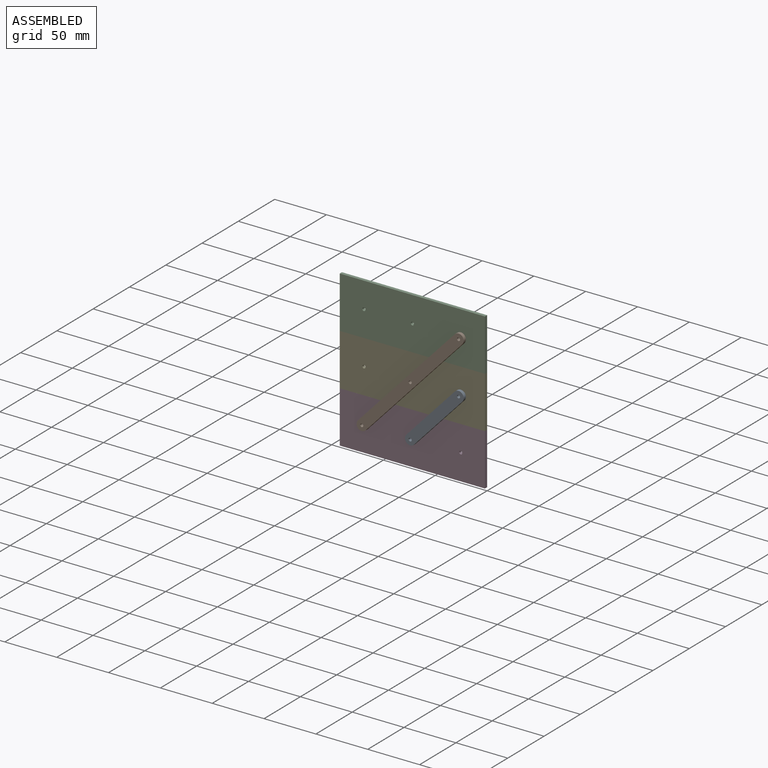
[diagram: assembled view]
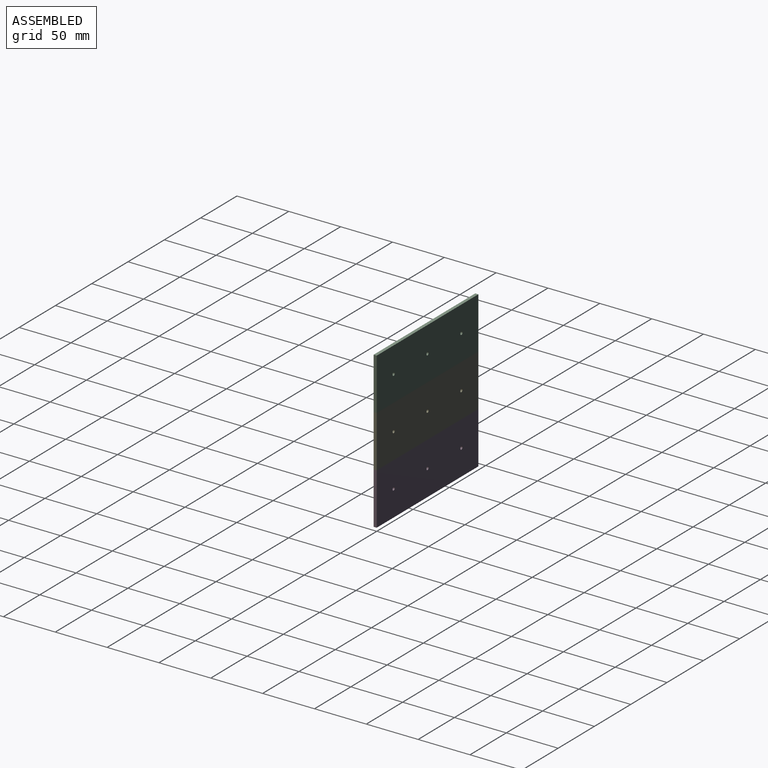
[diagram: assembled view, second angle]
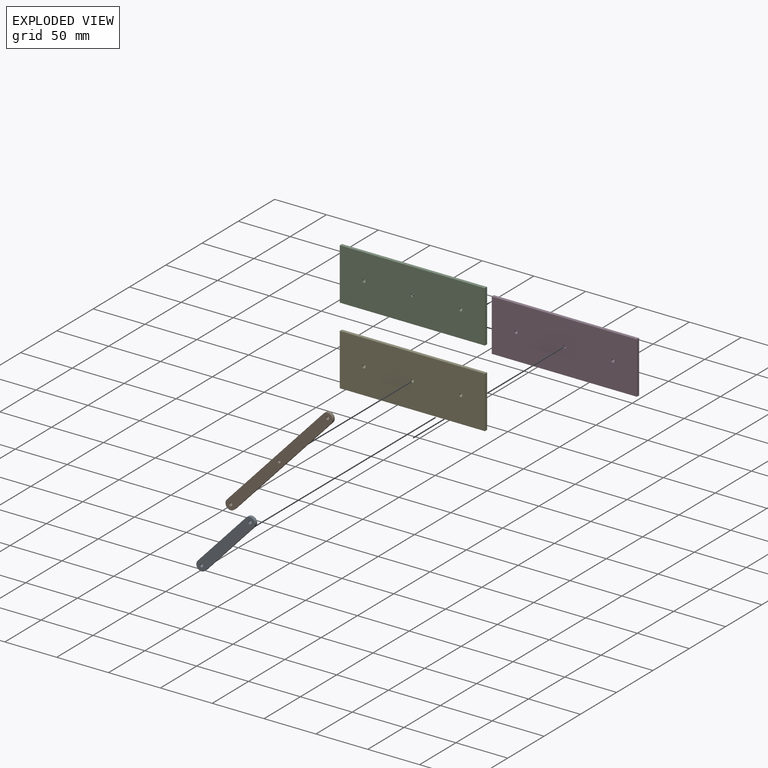
[diagram: exploded view]
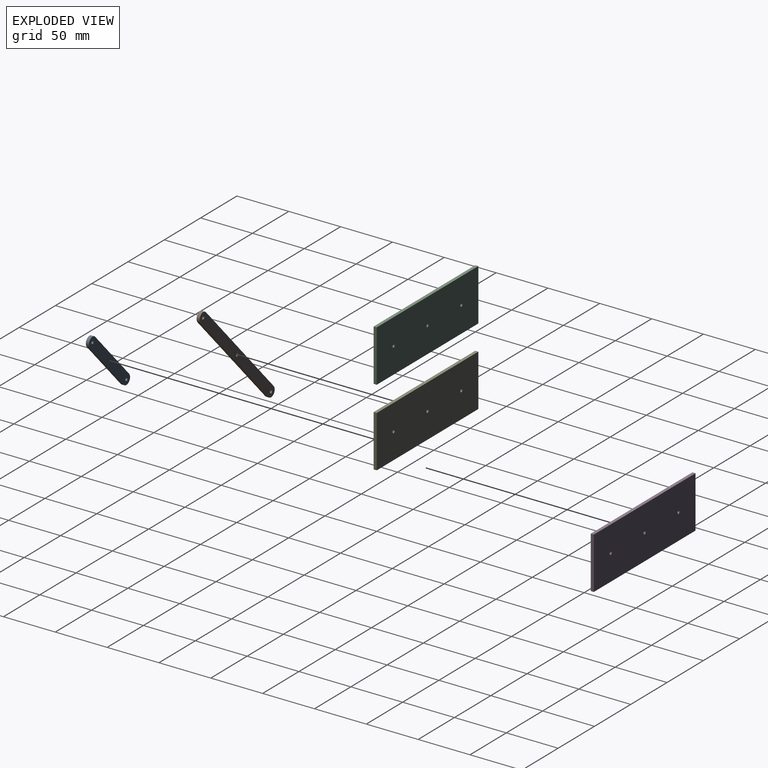
[diagram: exploded view, second angle]
ASSEMBLY  parts=5 mates=8
PART A: 8 faces, bbox 56.7x3x60 mm
  f0: cylinder r=5mm len=8.66mm, axis (0,1,0), area 47.1mm2, adj f1,f4,f6,f7
  f1: plane 50x46.67mm, normal (0.73,0,-0.68), area 205.2mm2, adj f0,f2,f6,f7
  f2: cylinder r=5mm len=8.66mm, axis (0,1,0), area 47.1mm2, adj f1,f4,f6,f7
  f3: cylinder r=1.5mm len=3mm, axis (0,1,0), area 28.3mm2, adj f6,f7
  f4: plane 50x46.67mm, normal (-0.73,0,0.68), area 205.2mm2, adj f0,f2,f6,f7
  f5: cylinder r=1.5mm len=3mm, axis (0,1,0), area 28.3mm2, adj f6,f7
  f6: plane 60x56.67mm, normal (0,-1,0), area 748.3mm2, adj f0,f1,f2,f3,f4,f5
  f7: plane 60x56.67mm, normal (0,1,0), area 748.3mm2, adj f0,f1,f2,f3,f4,f5
PART B: 9 faces, bbox 103.3x3x110 mm
  f0: plane 100x93.33mm, normal (-0.73,0,0.68), area 410.4mm2, adj f1,f5,f7,f8
  f1: cylinder r=5mm len=8.66mm, axis (0,1,0), area 47.1mm2, adj f0,f2,f7,f8
  f2: plane 100x93.33mm, normal (0.73,0,-0.68), area 410.4mm2, adj f1,f5,f7,f8
  f3: cylinder r=1.5mm len=3mm, axis (0,1,0), area 28.3mm2, adj f7,f8
  f4: cylinder r=1.5mm len=3mm, axis (0,1,0), area 28.3mm2, adj f7,f8
  f5: cylinder r=5mm len=8.66mm, axis (0,1,0), area 47.1mm2, adj f0,f2,f7,f8
  f6: cylinder r=1.5mm len=3mm, axis (0,1,0), area 28.3mm2, adj f7,f8
  f7: plane 110x103.33mm, normal (0,-1,0), area 1425.2mm2, adj f0,f1,f2,f3,f4,f5,f6
  f8: plane 110x103.33mm, normal (0,1,0), area 1425.2mm2, adj f0,f1,f2,f3,f4,f5,f6
PART C: 9 faces, bbox 140x3x50 mm
  f0: plane 140x3mm, normal (0,0,-1), area 420mm2, adj f1,f6,f7,f8
  f1: plane 50x3mm, normal (1,0,0), area 150mm2, adj f0,f2,f7,f8
  f2: plane 140x3mm, normal (0,0,1), area 420mm2, adj f1,f6,f7,f8
  f3: cylinder r=1.5mm len=3mm, axis (0,1,0), area 28.3mm2, adj f7,f8
  f4: cylinder r=1.5mm len=3mm, axis (0,1,0), area 28.3mm2, adj f7,f8
  f5: cylinder r=1.5mm len=3mm, axis (0,1,0), area 28.3mm2, adj f7,f8
  f6: plane 50x3mm, normal (-1,0,0), area 150mm2, adj f0,f2,f7,f8
  f7: plane 140x50mm, normal (0,-1,0), area 6978.8mm2, adj f0,f1,f2,f3,f4,f5,f6
  f8: plane 140x50mm, normal (0,1,0), area 6978.8mm2, adj f0,f1,f2,f3,f4,f5,f6
PART D: same geometry as C
PART E: same geometry as C
PLACE A rot(axis=(-0.68,0,-0.73),180deg) t=(-99.76,-9,93.11)mm
PLACE B rot(axis=(0,1,0),180deg) t=(-140,0,150)mm
PLACE C t=(0,0,100)mm
PLACE D at identity
PLACE E rot(axis=(0,-1,0),0deg) t=(0,0,50)mm
MATE parallel C.f0 <-> E.f2  axis (0,0,-1) through (-70,-1.5,100)mm
MATE revolute E.f5 <-> A.f2  axis (0,-1,0) through (-23.33,-3,75)mm
MATE planar E.f7 <-> D.f7  axis (0,-1,0) through (-70,-3,50)mm
MATE revolute D.f4 <-> B.f4  axis (0,-1,0) through (-116.67,-3,25)mm
MATE revolute D.f3 <-> A.f0  axis (0,-1,0) through (-70,-3,25)mm
MATE revolute E.f3 <-> B.f3  axis (0,-1,0) through (-70,-3,75)mm
MATE revolute C.f5 <-> B.f1  axis (0,-1,0) through (-23.33,-3,125)mm
MATE parallel D.f2 <-> E.f0  axis (0,0,1) through (-70,-1.5,50)mm
